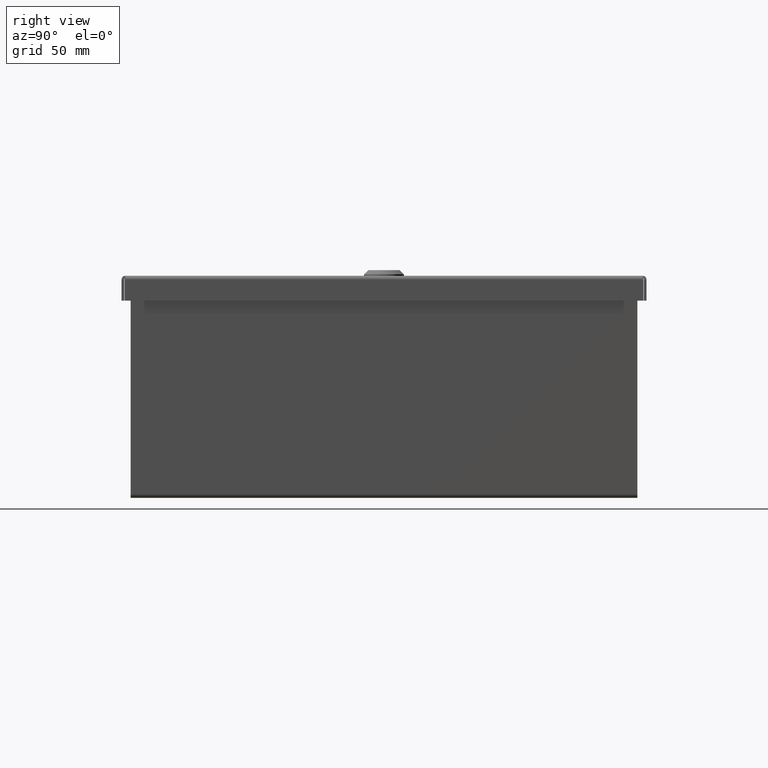
[diagram: clean part render]
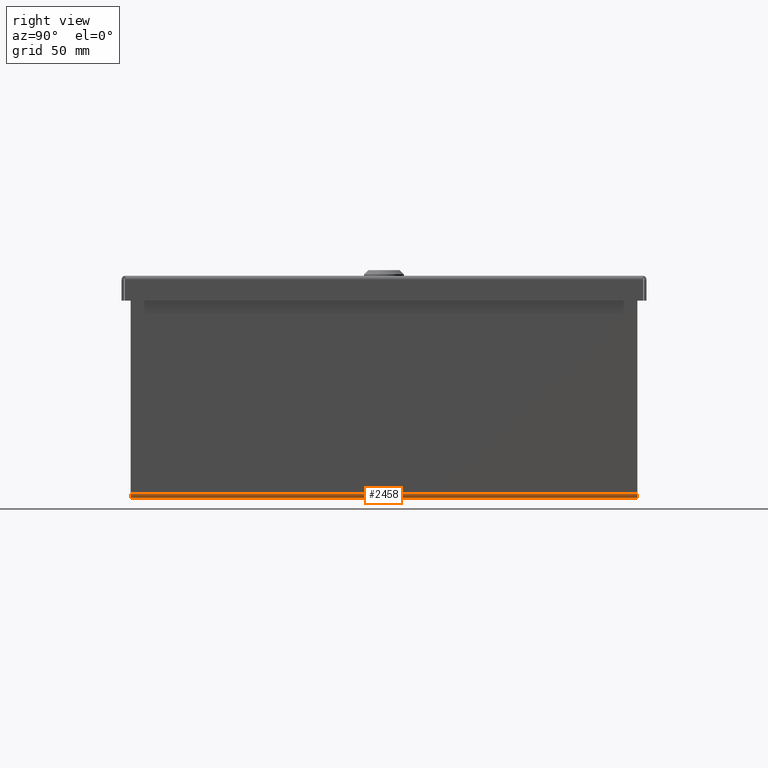
[diagram: same view with one face highlighted and labeled with its STEP entity id]
A machine part, right view. The second image highlights one B-rep face of the part: STEP entity #2458.
In plain terms, the highlighted cylindrical surface (edge-blend (fillet) strip) has radius 2.6734 mm, axis along (0, -1, 0).
Its self-contained STEP definition (entity closure, byte-faithful):
#2160=CARTESIAN_POINT('',(6.062499999999997,-6.999999999999999,0.10525));
#2161=VERTEX_POINT('',#2160);
#2207=CARTESIAN_POINT('',(6.062499999999995,7.000000000000001,0.10525));
#2208=VERTEX_POINT('',#2207);
#2421=CARTESIAN_POINT('',(5.957249999999996,1.398706E-015,0.10525));
#2422=DIRECTION('',(1.998152E-016,-1.0,0.0));
#2423=DIRECTION('',(0.0,0.0,-1.0));
#2424=AXIS2_PLACEMENT_3D('',#2421,#2422,#2423);
#2425=CYLINDRICAL_SURFACE('',#2424,0.10525);
#2426=CARTESIAN_POINT('',(6.062499999999998,-7.0,0.10525));
#2427=DIRECTION('',(0.0,1.0,0.0));
#2428=VECTOR('',#2427,14.0);
#2429=LINE('',#2426,#2428);
#2430=EDGE_CURVE('',#2161,#2208,#2429,.T.);
#2431=ORIENTED_EDGE('',*,*,#2430,.F.);
#2432=CARTESIAN_POINT('',(5.95725,-6.999999999999999,-2.185478E-017));
#2433=VERTEX_POINT('',#2432);
#2434=CARTESIAN_POINT('',(5.957249999999997,-6.999999999999999,0.10525));
#2435=DIRECTION('',(0.0,-1.0,0.0));
#2436=DIRECTION('',(0.0,0.0,-1.0));
#2437=AXIS2_PLACEMENT_3D('',#2434,#2435,#2436);
#2438=CIRCLE('',#2437,0.105250000000001);
#2439=EDGE_CURVE('',#2433,#2161,#2438,.T.);
#2440=ORIENTED_EDGE('',*,*,#2439,.F.);
#2441=CARTESIAN_POINT('',(5.957249999999998,7.000000000000001,-2.185478E-017));
#2442=VERTEX_POINT('',#2441);
#2443=CARTESIAN_POINT('',(5.957249999999998,7.000000000000001,0.0));
#2444=DIRECTION('',(0.0,-1.0,0.0));
#2445=VECTOR('',#2444,14.0);
#2446=LINE('',#2443,#2445);
#2447=EDGE_CURVE('',#2442,#2433,#2446,.T.);
#2448=ORIENTED_EDGE('',*,*,#2447,.F.);
#2449=CARTESIAN_POINT('',(5.957249999999994,7.000000000000001,0.10525));
#2450=DIRECTION('',(0.0,1.0,0.0));
#2451=DIRECTION('',(1.0,0.0,0.0));
#2452=AXIS2_PLACEMENT_3D('',#2449,#2450,#2451);
#2453=CIRCLE('',#2452,0.10525);
#2454=EDGE_CURVE('',#2208,#2442,#2453,.T.);
#2455=ORIENTED_EDGE('',*,*,#2454,.F.);
#2456=EDGE_LOOP('',(#2431,#2440,#2448,#2455));
#2457=FACE_OUTER_BOUND('',#2456,.T.);
#2458=ADVANCED_FACE('',(#2457),#2425,.T.);